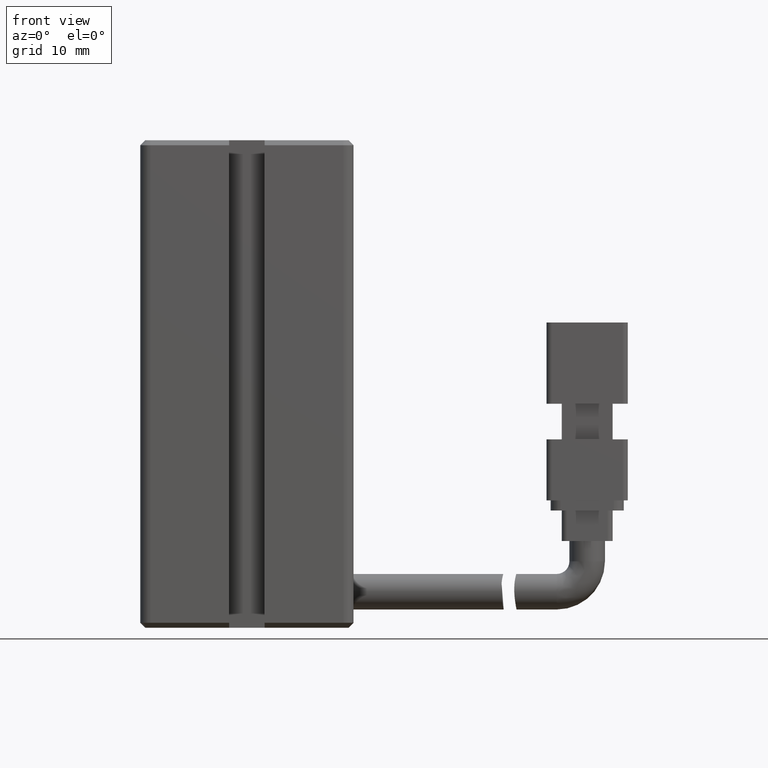
[diagram: clean part render]
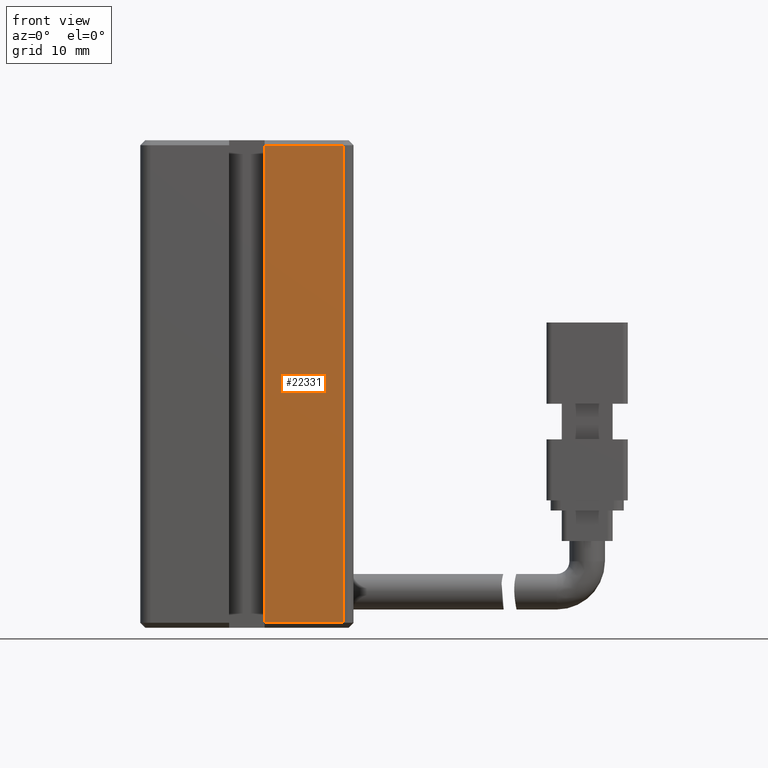
[diagram: same view with one face highlighted and labeled with its STEP entity id]
A machine part, front view. The second image highlights one B-rep face of the part: STEP entity #22331.
In plain terms, the highlighted planar face has unit normal (0, 1, 0).
Its self-contained STEP definition (entity closure, byte-faithful):
#782 = VERTEX_POINT ( 'NONE', #21488 ) ;
#836 = EDGE_CURVE ( 'NONE', #14396, #28318, #30294, .T. ) ;
#1010 = CARTESIAN_POINT ( 'NONE',  ( 42.67537974683542500, 10.99073232304837000, -91.00000000000000000 ) ) ;
#1292 = CARTESIAN_POINT ( 'NONE',  ( 42.67537974683542500, 10.99073232304837000, -138.5000000000000000 ) ) ;
#3039 = VERTEX_POINT ( 'NONE', #32614 ) ;
#3337 = EDGE_LOOP ( 'NONE', ( #7924, #5302, #24476, #12013 ) ) ;
#5302 = ORIENTED_EDGE ( 'NONE', *, *, #8041, .F. ) ;
#6109 = DIRECTION ( 'NONE',  ( 0.0000000000000000000, 1.000000000000000000, 0.0000000000000000000 ) ) ;
#6935 = CARTESIAN_POINT ( 'NONE',  ( 40.92537974683542500, 10.99073232304836100, -138.5000000000000000 ) ) ;
#7924 = ORIENTED_EDGE ( 'NONE', *, *, #8343, .F. ) ;
#8041 = EDGE_CURVE ( 'NONE', #14396, #782, #16929, .T. ) ;
#8343 = EDGE_CURVE ( 'NONE', #782, #3039, #21161, .T. ) ;
#9540 = CARTESIAN_POINT ( 'NONE',  ( 50.42537974683541800, 10.99073232304837000, -91.00000000000000000 ) ) ;
#11342 = VECTOR ( 'NONE', #33851, 1000.000000000000000 ) ;
#12013 = ORIENTED_EDGE ( 'NONE', *, *, #17837, .F. ) ;
#14396 = VERTEX_POINT ( 'NONE', #1292 ) ;
#16912 = CARTESIAN_POINT ( 'NONE',  ( 50.42537974683541800, 10.99073232303938300, -138.5000000000031800 ) ) ;
#16929 = LINE ( 'NONE', #1010, #11342 ) ;
#17837 = EDGE_CURVE ( 'NONE', #3039, #28318, #27996, .T. ) ;
#18648 = FACE_OUTER_BOUND ( 'NONE', #3337, .T. ) ;
#18970 = DIRECTION ( 'NONE',  ( 1.000000000000000000, 0.0000000000000000000, 0.0000000000000000000 ) ) ;
#21032 = CARTESIAN_POINT ( 'NONE',  ( 40.92537974683542500, 10.99073232304837000, -91.00000000000000000 ) ) ;
#21161 = LINE ( 'NONE', #24755, #28214 ) ;
#21488 = CARTESIAN_POINT ( 'NONE',  ( 42.67537974683542500, 10.99073232304837000, -91.50000000000001400 ) ) ;
#22331 = ADVANCED_FACE ( 'NONE', ( #18648 ), #24054, .F. ) ;
#24054 = PLANE ( 'NONE',  #33008 ) ;
#24476 = ORIENTED_EDGE ( 'NONE', *, *, #836, .T. ) ;
#24742 = DIRECTION ( 'NONE',  ( 1.000000000000000000, 0.0000000000000000000, -0.0000000000000000000 ) ) ;
#24755 = CARTESIAN_POINT ( 'NONE',  ( 40.92537974683542500, 10.99073232304837000, -91.50000000000001400 ) ) ;
#26575 = VECTOR ( 'NONE', #30520, 1000.000000000000000 ) ;
#27078 = DIRECTION ( 'NONE',  ( 0.0000000000000000000, -0.0000000000000000000, 1.000000000000000000 ) ) ;
#27996 = LINE ( 'NONE', #9540, #26575 ) ;
#28214 = VECTOR ( 'NONE', #18970, 1000.000000000000000 ) ;
#28318 = VERTEX_POINT ( 'NONE', #16912 ) ;
#30294 = LINE ( 'NONE', #6935, #32670 ) ;
#30520 = DIRECTION ( 'NONE',  ( -0.0000000000000000000, 0.0000000000000000000, -1.000000000000000000 ) ) ;
#32614 = CARTESIAN_POINT ( 'NONE',  ( 50.42537974683541800, 10.99073232307410600, -91.49999999998262000 ) ) ;
#32670 = VECTOR ( 'NONE', #24742, 1000.000000000000000 ) ;
#33008 = AXIS2_PLACEMENT_3D ( 'NONE', #21032, #6109, #27078 ) ;
#33851 = DIRECTION ( 'NONE',  ( 0.0000000000000000000, -0.0000000000000000000, 1.000000000000000000 ) ) ;